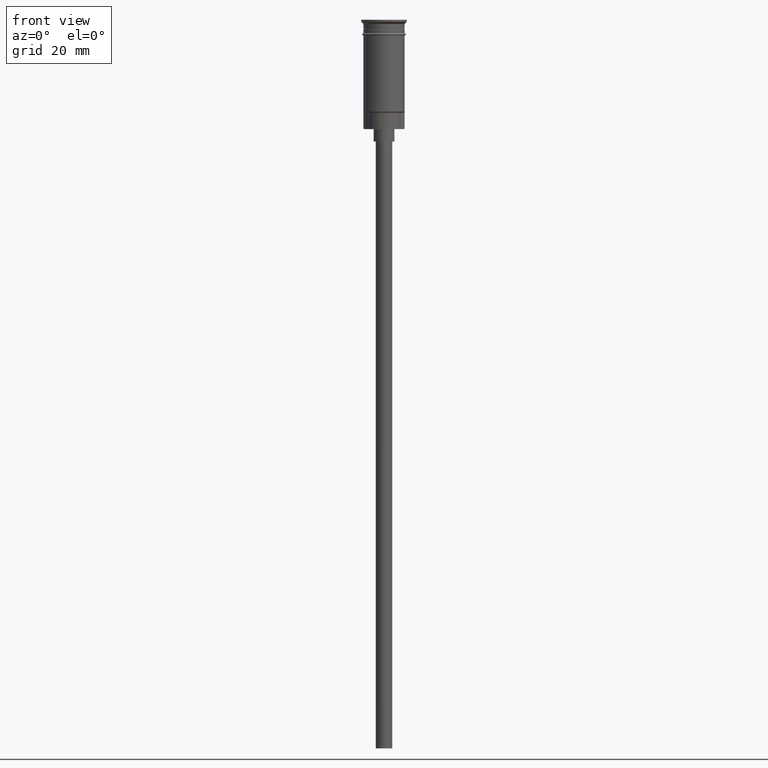
[diagram: clean part render]
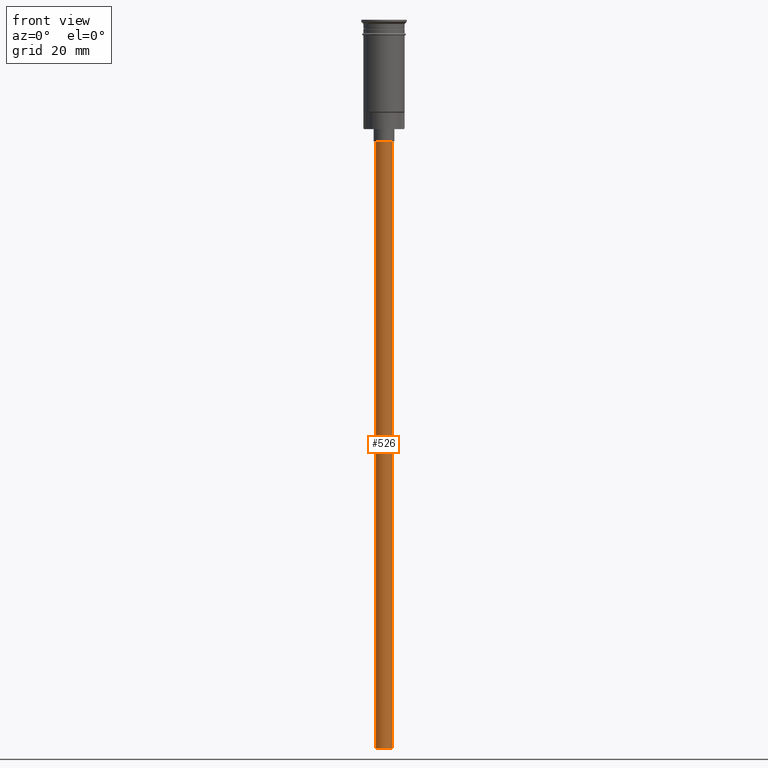
[diagram: same view with one face highlighted and labeled with its STEP entity id]
A machine part, front view. The second image highlights one B-rep face of the part: STEP entity #526.
In plain terms, the highlighted cylindrical surface (edge-blend (fillet) strip) has radius 2 mm, axis along (-0, -0, 1).
Its self-contained STEP definition (entity closure, byte-faithful):
#24 = CARTESIAN_POINT ( 'NONE',  ( 2.000000000000000000, 0.000000000000000000, -176.5000000000000000 ) ) ;
#40 = CARTESIAN_POINT ( 'NONE',  ( -2.000000000000000000, 2.449293598294706414E-16, -176.5000000000000000 ) ) ;
#143 = DIRECTION ( 'NONE',  ( 0.000000000000000000, 0.000000000000000000, -1.000000000000000000 ) ) ;
#168 = LINE ( 'NONE', #24, #897 ) ;
#189 = DIRECTION ( 'NONE',  ( -1.000000000000000000, 0.000000000000000000, 0.000000000000000000 ) ) ;
#295 = DIRECTION ( 'NONE',  ( 0.000000000000000000, 0.000000000000000000, -1.000000000000000000 ) ) ;
#296 = ORIENTED_EDGE ( 'NONE', *, *, #1578, .T. ) ;
#335 = FACE_OUTER_BOUND ( 'NONE', #907, .T. ) ;
#363 = AXIS2_PLACEMENT_3D ( 'NONE', #424, #295, #189 ) ;
#389 = VERTEX_POINT ( 'NONE', #1163 ) ;
#424 = CARTESIAN_POINT ( 'NONE',  ( 0.000000000000000000, 0.000000000000000000, -176.5000000000000000 ) ) ;
#454 = CYLINDRICAL_SURFACE ( 'NONE', #1106, 2.000000000000000000 ) ;
#487 = CIRCLE ( 'NONE', #363, 2.000000000000000000 ) ;
#526 = ADVANCED_FACE ( 'NONE', ( #335 ), #454, .T. ) ;
#574 = DIRECTION ( 'NONE',  ( 1.000000000000000000, 0.000000000000000000, 0.000000000000000000 ) ) ;
#585 = ORIENTED_EDGE ( 'NONE', *, *, #1542, .F. ) ;
#588 = DIRECTION ( 'NONE',  ( -0.000000000000000000, -0.000000000000000000, 1.000000000000000000 ) ) ;
#591 = CIRCLE ( 'NONE', #826, 2.000000000000000000 ) ;
#605 = ORIENTED_EDGE ( 'NONE', *, *, #731, .F. ) ;
#665 = CARTESIAN_POINT ( 'NONE',  ( 2.000000000000000000, 0.000000000000000000, -176.5000000000000000 ) ) ;
#731 = EDGE_CURVE ( 'NONE', #1602, #389, #487, .T. ) ;
#784 = VERTEX_POINT ( 'NONE', #1175 ) ;
#826 = AXIS2_PLACEMENT_3D ( 'NONE', #1486, #143, #969 ) ;
#849 = CARTESIAN_POINT ( 'NONE',  ( 0.000000000000000000, 0.000000000000000000, -176.5000000000000000 ) ) ;
#852 = VECTOR ( 'NONE', #1260, 1000.000000000000000 ) ;
#897 = VECTOR ( 'NONE', #1377, 1000.000000000000000 ) ;
#907 = EDGE_LOOP ( 'NONE', ( #585, #605, #296, #1323 ) ) ;
#969 = DIRECTION ( 'NONE',  ( -1.000000000000000000, 0.000000000000000000, 0.000000000000000000 ) ) ;
#1073 = EDGE_CURVE ( 'NONE', #784, #1530, #591, .T. ) ;
#1106 = AXIS2_PLACEMENT_3D ( 'NONE', #849, #588, #574 ) ;
#1163 = CARTESIAN_POINT ( 'NONE',  ( -2.000000000000000000, 2.449293598294706414E-16, -176.5000000000000000 ) ) ;
#1175 = CARTESIAN_POINT ( 'NONE',  ( 2.000000000000000000, 0.000000000000000000, -29.50000000000000000 ) ) ;
#1260 = DIRECTION ( 'NONE',  ( -0.000000000000000000, -0.000000000000000000, 1.000000000000000000 ) ) ;
#1275 = LINE ( 'NONE', #40, #852 ) ;
#1323 = ORIENTED_EDGE ( 'NONE', *, *, #1073, .T. ) ;
#1377 = DIRECTION ( 'NONE',  ( -0.000000000000000000, -0.000000000000000000, 1.000000000000000000 ) ) ;
#1486 = CARTESIAN_POINT ( 'NONE',  ( 0.000000000000000000, 0.000000000000000000, -29.50000000000000000 ) ) ;
#1508 = CARTESIAN_POINT ( 'NONE',  ( -2.000000000000000000, 2.449293598294706414E-16, -29.50000000000000000 ) ) ;
#1530 = VERTEX_POINT ( 'NONE', #1508 ) ;
#1542 = EDGE_CURVE ( 'NONE', #389, #1530, #1275, .T. ) ;
#1578 = EDGE_CURVE ( 'NONE', #1602, #784, #168, .T. ) ;
#1602 = VERTEX_POINT ( 'NONE', #665 ) ;